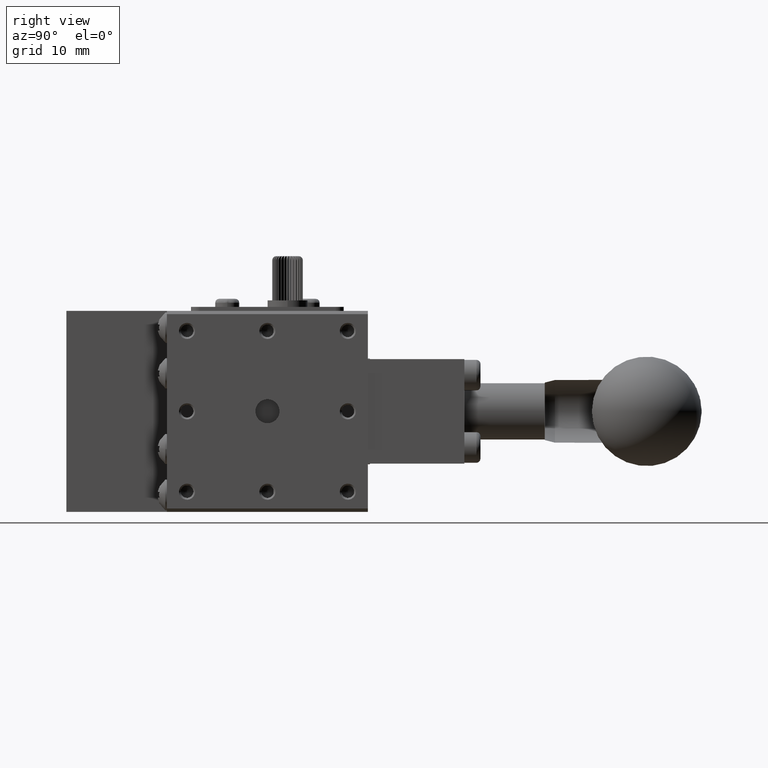
[diagram: clean part render]
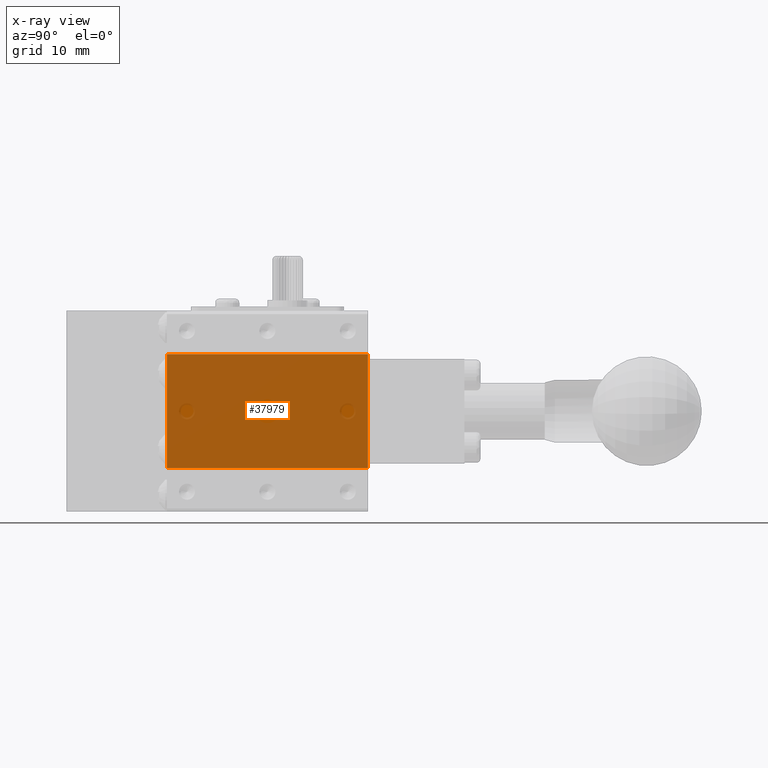
[diagram: x-ray — body ghosted, one internal face saturated and labeled with its STEP entity id]
A machine part, right view, then the same camera in x-ray: the body is ghosted and one INTERNAL B-rep face — a face not visible from any outside direction — is saturated and labeled: STEP entity #37979.
In plain terms, the highlighted planar face has unit normal (1, 0, 0).
Its self-contained STEP definition (entity closure, byte-faithful):
#2974 = CARTESIAN_POINT ( 'NONE',  ( 0.1999999999999889921, 37.50000000000000711, -19.60000000000000142 ) ) ;
#4343 = CARTESIAN_POINT ( 'NONE',  ( 0.1999999999999889921, 37.50000000000000711, -19.60000000000000142 ) ) ;
#6085 = CARTESIAN_POINT ( 'NONE',  ( 0.1999999999999889921, 37.50000000000000711, -19.60000000000000142 ) ) ;
#10096 = CARTESIAN_POINT ( 'NONE',  ( 0.1999999999999889921, 37.50000000000000711, -19.60000000000000142 ) ) ;
#10437 = LINE ( 'NONE', #2974, #83006 ) ;
#12033 = DIRECTION ( 'NONE',  ( 1.221636250687890015E-16, 0.000000000000000000, -1.000000000000000000 ) ) ;
#15549 = EDGE_LOOP ( 'NONE', ( #58460, #30956, #69804, #86567 ) ) ;
#22585 = VERTEX_POINT ( 'NONE', #71613 ) ;
#25223 = VERTEX_POINT ( 'NONE', #69738 ) ;
#30956 = ORIENTED_EDGE ( 'NONE', *, *, #79597, .F. ) ;
#32005 = DIRECTION ( 'NONE',  ( 0.000000000000000000, 1.000000000000000000, 0.000000000000000000 ) ) ;
#34876 = VECTOR ( 'NONE', #54563, 1000.000000000000000 ) ;
#35413 = DIRECTION ( 'NONE',  ( -0.000000000000000000, -1.000000000000000000, -0.000000000000000000 ) ) ;
#37979 = ADVANCED_FACE ( 'NONE', ( #70141 ), #69671, .F. ) ;
#39063 = VERTEX_POINT ( 'NONE', #52206 ) ;
#49440 = CARTESIAN_POINT ( 'NONE',  ( 0.1999999999999872713, 37.50000000000000711, -5.399999999999980815 ) ) ;
#51757 = VECTOR ( 'NONE', #12033, 1000.000000000000000 ) ;
#52206 = CARTESIAN_POINT ( 'NONE',  ( 0.1999999999999883260, 37.50000000000000711, -5.399999999999980815 ) ) ;
#54563 = DIRECTION ( 'NONE',  ( -1.221636250687890015E-16, -0.000000000000000000, 1.000000000000000000 ) ) ;
#55122 = LINE ( 'NONE', #68178, #51757 ) ;
#58460 = ORIENTED_EDGE ( 'NONE', *, *, #84150, .F. ) ;
#68178 = CARTESIAN_POINT ( 'NONE',  ( 0.1999999999999889921, 12.50000000000000000, -19.60000000000000142 ) ) ;
#68433 = AXIS2_PLACEMENT_3D ( 'NONE', #6085, #77153, #92059 ) ;
#69671 = PLANE ( 'NONE',  #68433 ) ;
#69738 = CARTESIAN_POINT ( 'NONE',  ( 0.1999999999999889921, 12.50000000000000000, -19.60000000000000142 ) ) ;
#69804 = ORIENTED_EDGE ( 'NONE', *, *, #88243, .F. ) ;
#70141 = FACE_OUTER_BOUND ( 'NONE', #15549, .T. ) ;
#71613 = CARTESIAN_POINT ( 'NONE',  ( 0.1999999999999880484, 12.50000000000000000, -5.399999999999980815 ) ) ;
#77153 = DIRECTION ( 'NONE',  ( 1.000000000000000000, 0.000000000000000000, 1.221636250687890015E-16 ) ) ;
#77439 = LINE ( 'NONE', #49440, #87235 ) ;
#79597 = EDGE_CURVE ( 'NONE', #90465, #39063, #82106, .T. ) ;
#82106 = LINE ( 'NONE', #10096, #34876 ) ;
#83006 = VECTOR ( 'NONE', #32005, 1000.000000000000000 ) ;
#84150 = EDGE_CURVE ( 'NONE', #39063, #22585, #77439, .T. ) ;
#86567 = ORIENTED_EDGE ( 'NONE', *, *, #89887, .F. ) ;
#87235 = VECTOR ( 'NONE', #35413, 1000.000000000000000 ) ;
#88243 = EDGE_CURVE ( 'NONE', #25223, #90465, #10437, .T. ) ;
#89887 = EDGE_CURVE ( 'NONE', #22585, #25223, #55122, .T. ) ;
#90465 = VERTEX_POINT ( 'NONE', #4343 ) ;
#92059 = DIRECTION ( 'NONE',  ( 1.221636250687890015E-16, 0.000000000000000000, -1.000000000000000000 ) ) ;